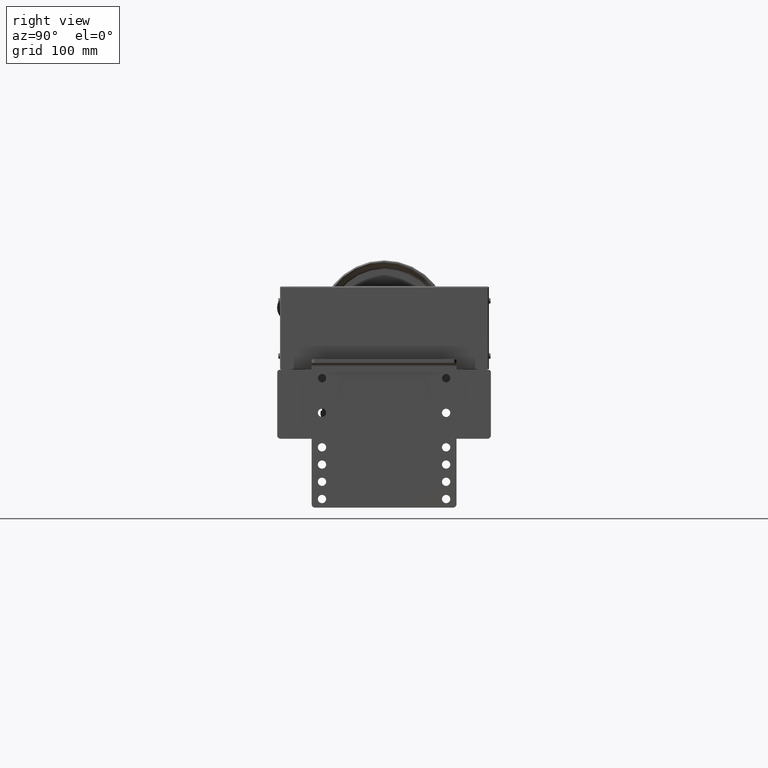
[diagram: clean part render]
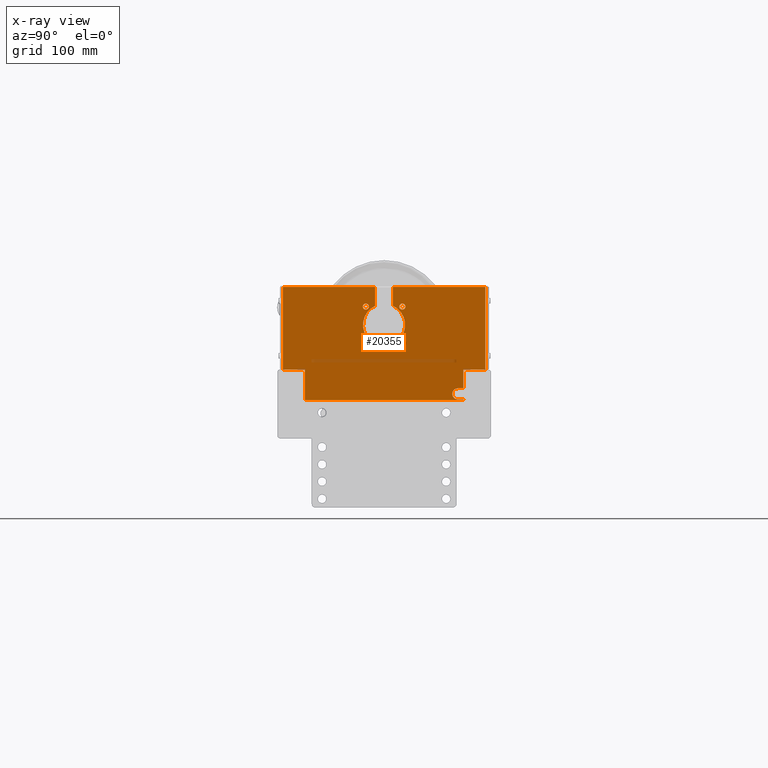
[diagram: x-ray — body ghosted, one internal face saturated and labeled with its STEP entity id]
A machine part, right view, then the same camera in x-ray: the body is ghosted and one INTERNAL B-rep face — a face not visible from any outside direction — is saturated and labeled: STEP entity #20355.
In plain terms, the highlighted planar face has unit normal (1, 0, -0).
Its self-contained STEP definition (entity closure, byte-faithful):
#18953=CARTESIAN_POINT('',(-22.141504294496144,3.483495705504765,1.500000000000000));
#18954=VERTEX_POINT('',#18953);
#18963=CARTESIAN_POINT('',(-30.891504294496144,3.483495705504765,1.500000000000000));
#18964=VERTEX_POINT('',#18963);
#18965=CARTESIAN_POINT('',(-26.516504294496144,3.483495705504765,1.500000000000000));
#18966=DIRECTION('',(0.0,0.0,1.0));
#18967=DIRECTION('',(1.0,0.0,0.0));
#18968=AXIS2_PLACEMENT_3D('',#18965,#18966,#18967);
#18969=CIRCLE('',#18968,4.375000000000000);
#18970=EDGE_CURVE('',#18954,#18964,#18969,.T.);
#18995=CARTESIAN_POINT('',(30.891504294494780,3.483495705504765,1.500000000000000));
#18996=VERTEX_POINT('',#18995);
#19005=CARTESIAN_POINT('',(22.141504294494780,3.483495705504765,1.500000000000000));
#19006=VERTEX_POINT('',#19005);
#19007=CARTESIAN_POINT('',(26.516504294494780,3.483495705504765,1.500000000000000));
#19008=DIRECTION('',(0.0,0.0,1.0));
#19009=DIRECTION('',(1.0,0.0,0.0));
#19010=AXIS2_PLACEMENT_3D('',#19007,#19008,#19009);
#19011=CIRCLE('',#19010,4.375000000000000);
#19012=EDGE_CURVE('',#18996,#19006,#19011,.T.);
#19037=CARTESIAN_POINT('',(30.891504294494780,56.516504294495917,1.500000000000000));
#19038=VERTEX_POINT('',#19037);
#19047=CARTESIAN_POINT('',(22.141504294494780,56.516504294495917,1.500000000000000));
#19048=VERTEX_POINT('',#19047);
#19049=CARTESIAN_POINT('',(26.516504294494780,56.516504294495917,1.500000000000000));
#19050=DIRECTION('',(0.0,0.0,1.0));
#19051=DIRECTION('',(1.0,0.0,0.0));
#19052=AXIS2_PLACEMENT_3D('',#19049,#19050,#19051);
#19053=CIRCLE('',#19052,4.375000000000000);
#19054=EDGE_CURVE('',#19038,#19048,#19053,.T.);
#19079=CARTESIAN_POINT('',(-22.141504294496372,56.516504294495917,1.500000000000000));
#19080=VERTEX_POINT('',#19079);
#19089=CARTESIAN_POINT('',(-30.891504294496372,56.516504294495917,1.500000000000000));
#19090=VERTEX_POINT('',#19089);
#19091=CARTESIAN_POINT('',(-26.516504294496372,56.516504294495917,1.500000000000000));
#19092=DIRECTION('',(0.0,0.0,1.0));
#19093=DIRECTION('',(1.0,0.0,0.0));
#19094=AXIS2_PLACEMENT_3D('',#19091,#19092,#19093);
#19095=CIRCLE('',#19094,4.375000000000000);
#19096=EDGE_CURVE('',#19080,#19090,#19095,.T.);
#19371=CARTESIAN_POINT('',(114.999999999999090,-77.999999999999773,1.500000000000000));
#19372=VERTEX_POINT('',#19371);
#19379=CARTESIAN_POINT('',(114.999999999999090,-78.999999999999773,1.500000000000000));
#19380=VERTEX_POINT('',#19379);
#19381=CARTESIAN_POINT('',(114.999999999999090,-77.999999999999773,1.500000000000000));
#19382=DIRECTION('',(0.0,-1.0,0.0));
#19383=VECTOR('',#19382,1.0);
#19384=LINE('',#19381,#19383);
#19385=EDGE_CURVE('',#19372,#19380,#19384,.T.);
#19419=CARTESIAN_POINT('',(-115.000000000000910,-78.999999999999773,1.500000000000000));
#19420=VERTEX_POINT('',#19419);
#19437=CARTESIAN_POINT('',(114.999999999999090,-78.999999999999773,1.500000000000000));
#19438=DIRECTION('',(-1.0,0.0,0.0));
#19439=VECTOR('',#19438,230.0);
#19440=LINE('',#19437,#19439);
#19441=EDGE_CURVE('',#19380,#19420,#19440,.T.);
#19571=CARTESIAN_POINT('',(146.999999999999090,-34.999999999999773,1.500000000000000));
#19572=VERTEX_POINT('',#19571);
#19573=CARTESIAN_POINT('',(146.999999999999090,85.000000000000227,1.500000000000000));
#19574=VERTEX_POINT('',#19573);
#19575=CARTESIAN_POINT('',(146.999999999999090,-34.999999999999773,1.500000000000000));
#19576=DIRECTION('',(0.0,1.0,0.0));
#19577=VECTOR('',#19576,120.0);
#19578=LINE('',#19575,#19577);
#19579=EDGE_CURVE('',#19572,#19574,#19578,.T.);
#19650=CARTESIAN_POINT('',(-147.000000000000910,85.000000000000227,1.500000000000000));
#19651=VERTEX_POINT('',#19650);
#19652=CARTESIAN_POINT('',(-147.000000000001020,-34.999999999999773,1.500000000000000));
#19653=VERTEX_POINT('',#19652);
#19654=CARTESIAN_POINT('',(-147.000000000000910,85.000000000000227,1.500000000000000));
#19655=DIRECTION('',(0.0,-1.0,0.0));
#19656=VECTOR('',#19655,120.0);
#19657=LINE('',#19654,#19656);
#19658=EDGE_CURVE('',#19651,#19653,#19657,.T.);
#19756=CARTESIAN_POINT('',(12.999999999999091,85.000000000000227,1.500000000000000));
#19757=VERTEX_POINT('',#19756);
#19764=CARTESIAN_POINT('',(12.999999999999091,85.000000000000227,1.500000000000000));
#19765=DIRECTION('',(1.0,0.0,0.0));
#19766=VECTOR('',#19765,134.0);
#19767=LINE('',#19764,#19766);
#19768=EDGE_CURVE('',#19757,#19574,#19767,.T.);
#19786=CARTESIAN_POINT('',(114.999999999999090,-34.999999999999773,1.500000000000000));
#19787=VERTEX_POINT('',#19786);
#19788=CARTESIAN_POINT('',(146.999999999999090,-34.999999999999773,1.500000000000000));
#19789=DIRECTION('',(-1.0,0.0,0.0));
#19790=VECTOR('',#19789,32.0);
#19791=LINE('',#19788,#19790);
#19792=EDGE_CURVE('',#19572,#19787,#19791,.T.);
#19826=CARTESIAN_POINT('',(-13.000000000000909,85.000000000000227,1.500000000000000));
#19827=VERTEX_POINT('',#19826);
#19828=CARTESIAN_POINT('',(-147.000000000000910,85.000000000000227,1.500000000000000));
#19829=DIRECTION('',(1.0,0.0,0.0));
#19830=VECTOR('',#19829,134.0);
#19831=LINE('',#19828,#19830);
#19832=EDGE_CURVE('',#19651,#19827,#19831,.T.);
#20006=CARTESIAN_POINT('',(-115.000000000000910,-34.999999999999773,1.500000000000000));
#20007=VERTEX_POINT('',#20006);
#20008=CARTESIAN_POINT('',(-115.000000000000910,-78.999999999999773,1.500000000000000));
#20009=DIRECTION('',(0.0,1.0,0.0));
#20010=VECTOR('',#20009,44.0);
#20011=LINE('',#20008,#20010);
#20012=EDGE_CURVE('',#19420,#20007,#20011,.T.);
#20029=CARTESIAN_POINT('',(-13.000000000000909,57.590759322643180,1.500000000000000));
#20030=VERTEX_POINT('',#20029);
#20031=CARTESIAN_POINT('',(-13.000000000000909,85.000000000000227,1.500000000000000));
#20032=DIRECTION('',(0.0,-1.0,0.0));
#20033=VECTOR('',#20032,27.409240677357047);
#20034=LINE('',#20031,#20033);
#20035=EDGE_CURVE('',#19827,#20030,#20034,.T.);
#20053=CARTESIAN_POINT('',(12.999999999999091,57.590759322643180,1.500000000000000));
#20054=VERTEX_POINT('',#20053);
#20055=CARTESIAN_POINT('',(1.818989E-012,29.999999999996817,1.500000000000000));
#20056=DIRECTION('',(0.0,0.0,1.0));
#20057=DIRECTION('',(1.0,0.0,0.0));
#20058=AXIS2_PLACEMENT_3D('',#20055,#20056,#20057);
#20059=CIRCLE('',#20058,30.500000000000000);
#20060=EDGE_CURVE('',#20030,#20054,#20059,.T.);
#20078=CARTESIAN_POINT('',(12.999999999999091,57.590759322643180,1.500000000000000));
#20079=DIRECTION('',(0.0,1.0,0.0));
#20080=VECTOR('',#20079,27.409240677357047);
#20081=LINE('',#20078,#20080);
#20082=EDGE_CURVE('',#20054,#19757,#20081,.T.);
#20115=CARTESIAN_POINT('',(114.999999999999090,-61.999999999999773,1.500000000000000));
#20116=VERTEX_POINT('',#20115);
#20117=CARTESIAN_POINT('',(114.999999999999090,-34.999999999999773,1.500000000000000));
#20118=DIRECTION('',(0.0,-1.0,0.0));
#20119=VECTOR('',#20118,27.0);
#20120=LINE('',#20117,#20119);
#20121=EDGE_CURVE('',#19787,#20116,#20120,.T.);
#20139=CARTESIAN_POINT('',(106.999999999999090,-61.999999999999773,1.500000000000000));
#20140=VERTEX_POINT('',#20139);
#20141=CARTESIAN_POINT('',(114.999999999999090,-61.999999999999773,1.500000000000000));
#20142=DIRECTION('',(-1.0,0.0,0.0));
#20143=VECTOR('',#20142,8.0);
#20144=LINE('',#20141,#20143);
#20145=EDGE_CURVE('',#20116,#20140,#20144,.T.);
#20163=CARTESIAN_POINT('',(106.999999999999090,-77.999999999999773,1.500000000000000));
#20164=VERTEX_POINT('',#20163);
#20165=CARTESIAN_POINT('',(106.999999999999090,-69.999999999999773,1.500000000000000));
#20166=DIRECTION('',(0.0,0.0,1.0));
#20167=DIRECTION('',(1.0,0.0,0.0));
#20168=AXIS2_PLACEMENT_3D('',#20165,#20166,#20167);
#20169=CIRCLE('',#20168,8.0);
#20170=EDGE_CURVE('',#20140,#20164,#20169,.T.);
#20188=CARTESIAN_POINT('',(106.999999999999090,-77.999999999999773,1.500000000000000));
#20189=DIRECTION('',(1.0,0.0,0.0));
#20190=VECTOR('',#20189,8.0);
#20191=LINE('',#20188,#20190);
#20192=EDGE_CURVE('',#20164,#19372,#20191,.T.);
#20207=CARTESIAN_POINT('',(-115.000000000000910,-34.999999999999773,1.500000000000000));
#20208=DIRECTION('',(-1.0,0.0,0.0));
#20209=VECTOR('',#20208,32.000000000000114);
#20210=LINE('',#20207,#20209);
#20211=EDGE_CURVE('',#20007,#19653,#20210,.T.);
#20252=CARTESIAN_POINT('',(-26.516504294496372,56.516504294495917,1.500000000000000));
#20253=DIRECTION('',(0.0,0.0,1.0));
#20254=DIRECTION('',(1.0,0.0,0.0));
#20255=AXIS2_PLACEMENT_3D('',#20252,#20253,#20254);
#20256=CIRCLE('',#20255,4.375000000000000);
#20257=EDGE_CURVE('',#19090,#19080,#20256,.T.);
#20270=CARTESIAN_POINT('',(26.516504294494780,56.516504294495917,1.500000000000000));
#20271=DIRECTION('',(0.0,0.0,1.0));
#20272=DIRECTION('',(1.0,0.0,0.0));
#20273=AXIS2_PLACEMENT_3D('',#20270,#20271,#20272);
#20274=CIRCLE('',#20273,4.375000000000000);
#20275=EDGE_CURVE('',#19048,#19038,#20274,.T.);
#20288=CARTESIAN_POINT('',(26.516504294494780,3.483495705504765,1.500000000000000));
#20289=DIRECTION('',(0.0,0.0,1.0));
#20290=DIRECTION('',(1.0,0.0,0.0));
#20291=AXIS2_PLACEMENT_3D('',#20288,#20289,#20290);
#20292=CIRCLE('',#20291,4.375000000000000);
#20293=EDGE_CURVE('',#19006,#18996,#20292,.T.);
#20306=CARTESIAN_POINT('',(-26.516504294496144,3.483495705504765,1.500000000000000));
#20307=DIRECTION('',(0.0,0.0,1.0));
#20308=DIRECTION('',(1.0,0.0,0.0));
#20309=AXIS2_PLACEMENT_3D('',#20306,#20307,#20308);
#20310=CIRCLE('',#20309,4.375000000000000);
#20311=EDGE_CURVE('',#18964,#18954,#20310,.T.);
#20316=CARTESIAN_POINT('',(2.165992825262492,6.983821610617270,1.500000000000000));
#20317=DIRECTION('',(0.0,0.0,1.0));
#20318=DIRECTION('',(1.0,0.0,0.0));
#20319=AXIS2_PLACEMENT_3D('',#20316,#20317,#20318);
#20320=PLANE('',#20319);
#20321=ORIENTED_EDGE('',*,*,#19441,.F.);
#20322=ORIENTED_EDGE('',*,*,#19385,.F.);
#20323=ORIENTED_EDGE('',*,*,#20192,.F.);
#20324=ORIENTED_EDGE('',*,*,#20170,.F.);
#20325=ORIENTED_EDGE('',*,*,#20145,.F.);
#20326=ORIENTED_EDGE('',*,*,#20121,.F.);
#20327=ORIENTED_EDGE('',*,*,#19792,.F.);
#20328=ORIENTED_EDGE('',*,*,#19579,.T.);
#20329=ORIENTED_EDGE('',*,*,#19768,.F.);
#20330=ORIENTED_EDGE('',*,*,#20082,.F.);
#20331=ORIENTED_EDGE('',*,*,#20060,.F.);
#20332=ORIENTED_EDGE('',*,*,#20035,.F.);
#20333=ORIENTED_EDGE('',*,*,#19832,.F.);
#20334=ORIENTED_EDGE('',*,*,#19658,.T.);
#20335=ORIENTED_EDGE('',*,*,#20211,.F.);
#20336=ORIENTED_EDGE('',*,*,#20012,.F.);
#20337=EDGE_LOOP('',(#20321,#20322,#20323,#20324,#20325,#20326,#20327,#20328,#20329,#20330,#20331,#20332,#20333,#20334,#20335,#20336));
#20338=FACE_OUTER_BOUND('',#20337,.T.);
#20339=ORIENTED_EDGE('',*,*,#18970,.F.);
#20340=ORIENTED_EDGE('',*,*,#20311,.F.);
#20341=EDGE_LOOP('',(#20339,#20340));
#20342=FACE_BOUND('',#20341,.T.);
#20343=ORIENTED_EDGE('',*,*,#19012,.F.);
#20344=ORIENTED_EDGE('',*,*,#20293,.F.);
#20345=EDGE_LOOP('',(#20343,#20344));
#20346=FACE_BOUND('',#20345,.T.);
#20347=ORIENTED_EDGE('',*,*,#19054,.F.);
#20348=ORIENTED_EDGE('',*,*,#20275,.F.);
#20349=EDGE_LOOP('',(#20347,#20348));
#20350=FACE_BOUND('',#20349,.T.);
#20351=ORIENTED_EDGE('',*,*,#19096,.F.);
#20352=ORIENTED_EDGE('',*,*,#20257,.F.);
#20353=EDGE_LOOP('',(#20351,#20352));
#20354=FACE_BOUND('',#20353,.T.);
#20355=ADVANCED_FACE('',(#20338,#20342,#20346,#20350,#20354),#20320,.T.);